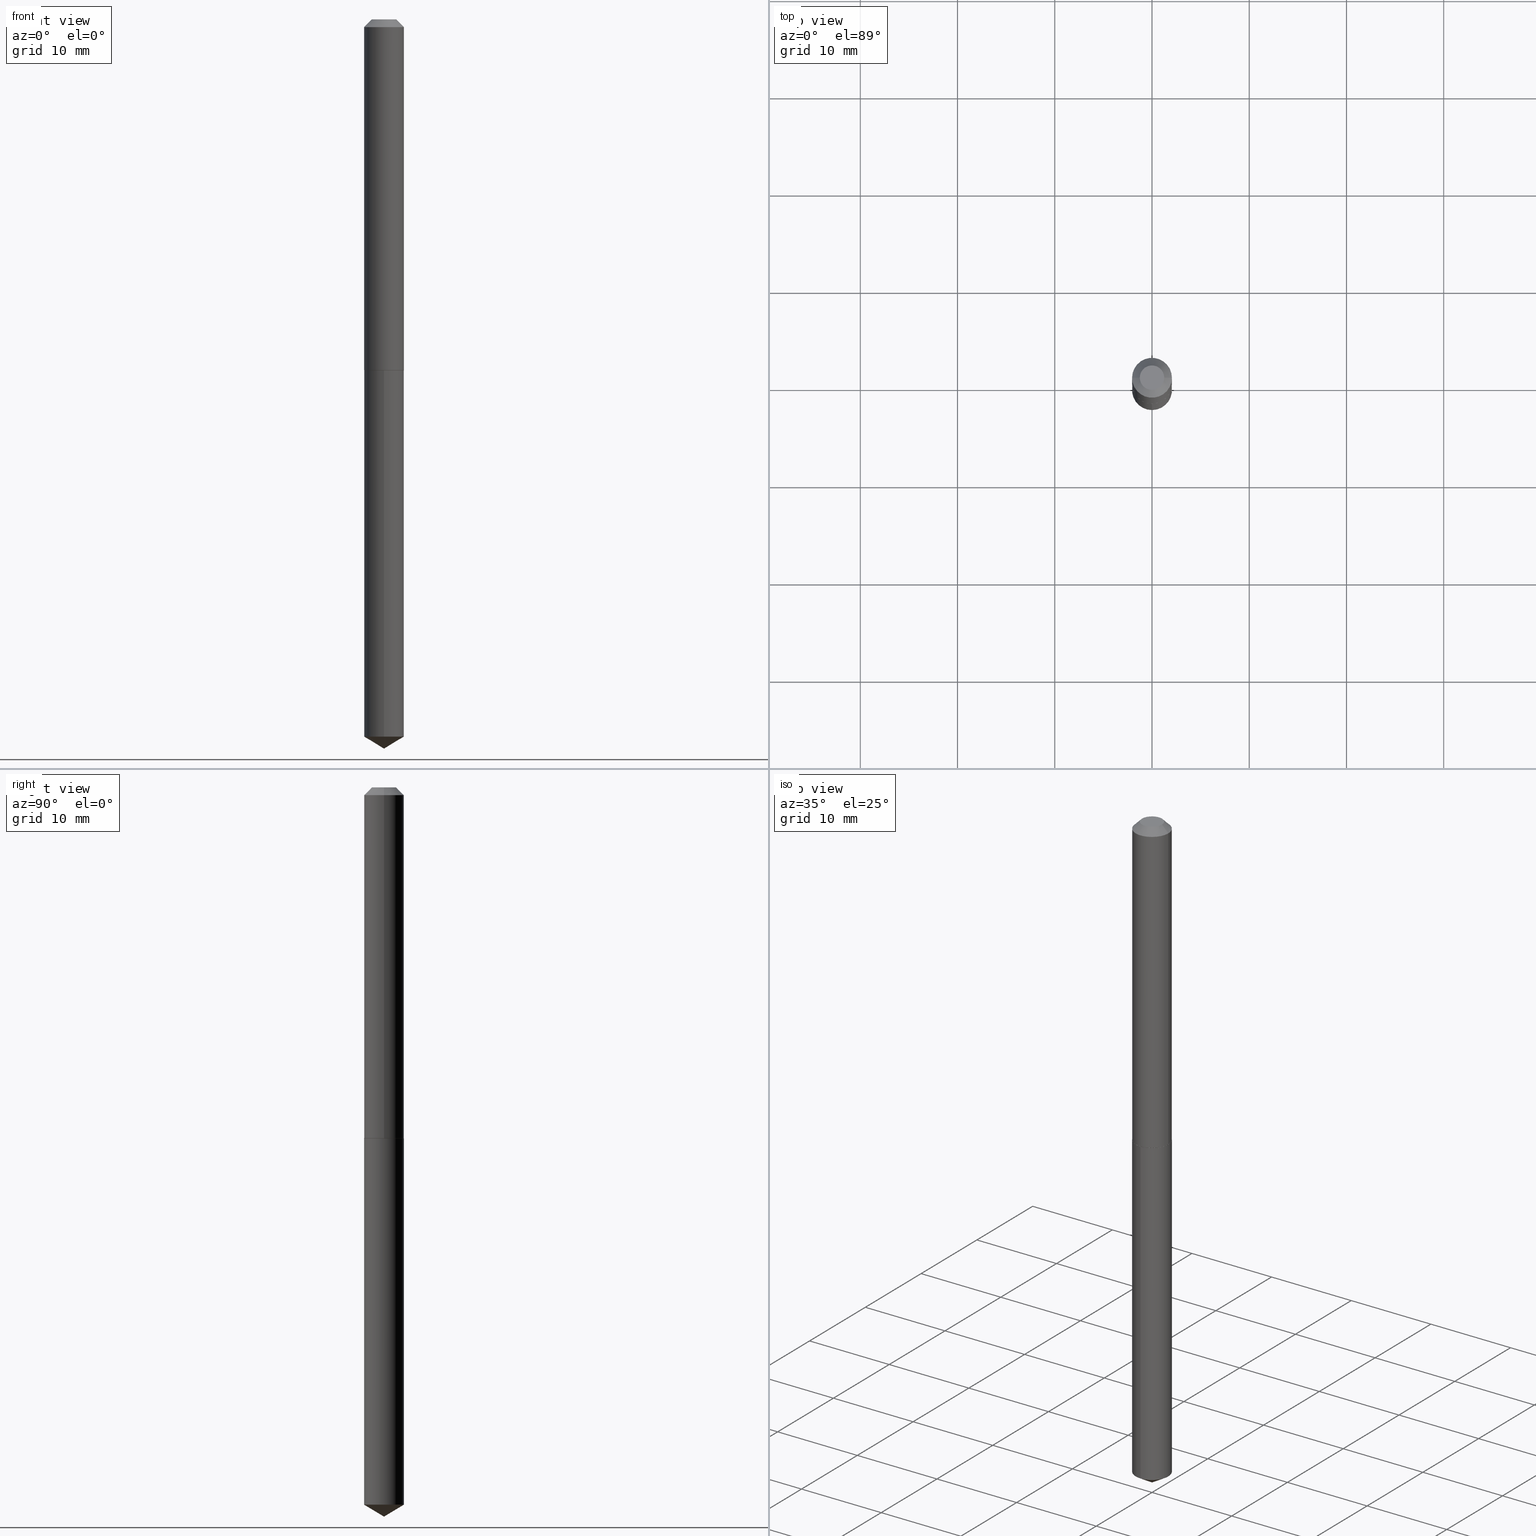
[diagram: canonical four-view strip — front | top / right | iso, engineering-drawing reading convention]
A machine part, canonical four-view strip (front | top / right | iso — engineering-drawing reading convention). The complete STEP part file that produces these views, byte-faithful:
ISO-10303-21;
HEADER;
FILE_DESCRIPTION (( 'STEP AP203' ),
    '1' );
FILE_NAME ('61076.STEP',
    '2024-04-23T03:18:44',
    ( '' ),
    ( '' ),
    'SwSTEP 2.0',
    'SolidWorks 2023',
    '' );
FILE_SCHEMA (( 'CONFIG_CONTROL_DESIGN' ));
ENDSEC;

DATA;
#1 = PERSON_AND_ORGANIZATION ( #143, #244 ) ;
#2 = EDGE_LOOP ( 'NONE', ( #319, #125 ) ) ;
#3 = ADVANCED_BREP_SHAPE_REPRESENTATION ( '61076', ( #176, #317, #228 ), #328 ) ;
#4 = CIRCLE ( 'NONE', #68, 0.04944999999999999396 ) ;
#5 = ADVANCED_FACE ( 'NONE', ( #6 ), #359, .T. ) ;
#6 = FACE_OUTER_BOUND ( 'NONE', #274, .T. ) ;
#7 = PRODUCT_DEFINITION ( 'UNKNOWN', '', #96, #199 ) ;
#8 = ORIENTED_EDGE ( 'NONE', *, *, #259, .T. ) ;
#9 = EDGE_CURVE ( 'NONE', #331, #148, #242, .T. ) ;
#10 = EDGE_LOOP ( 'NONE', ( #8, #339, #338, #133 ) ) ;
#11 = SHAPE_DEFINITION_REPRESENTATION ( #97, #3 ) ;
#12 = EDGE_LOOP ( 'NONE', ( #367, #380, #70, #129 ) ) ;
#13 = ORIENTED_EDGE ( 'NONE', *, *, #356, .F. ) ;
#14 = CARTESIAN_POINT ( 'NONE',  ( 0.08070000000000016049, -5.524221774317623619E-15, -1.420799999999999841 ) ) ;
#15 = CLOSED_SHELL ( 'NONE', ( #89, #106, #145, #297, #136, #171, #5, #255 ) ) ;
#16 = EDGE_CURVE ( 'NONE', #43, #303, #59, .T. ) ;
#17 = AXIS2_PLACEMENT_3D ( 'NONE', #307, #275, #375 ) ;
#18 = DIRECTION ( 'NONE',  ( 1.000000000000000000, -6.982962677686266711E-15, 4.876163536243812801E-29 ) ) ;
#19 = EDGE_LOOP ( 'NONE', ( #263, #67, #216, #300 ) ) ;
#20 = APPROVAL ( #323, 'UNSPECIFIED' ) ;
#21 = DIRECTION ( 'NONE',  ( 1.000000000000000000, -6.982962677686266711E-15, 4.876176775795935793E-29 ) ) ;
#22 = DIRECTION ( 'NONE',  ( -6.982962677686266711E-15, -1.000000000000000000, 3.385189583227092077E-15 ) ) ;
#23 = EDGE_CURVE ( 'NONE', #151, #303, #237, .T. ) ;
#24 = DIRECTION ( 'NONE',  ( 6.090539988449784746E-15, 0.8571673007021146651, 0.5150380749100500477 ) ) ;
#25 = CARTESIAN_POINT ( 'NONE',  ( 7.642090019328601786E-31, -1.091087918388490144E-16, -0.03125000000000020123 ) ) ;
#26 = CONICAL_SURFACE ( 'NONE', #234, 65.52281426576863055, 1.029744258676655866 ) ;
#27 = CIRCLE ( 'NONE', #158, 0.08070000000000016049 ) ;
#28 = DATE_AND_TIME ( #61, #46 ) ;
#29 = CARTESIAN_POINT ( 'NONE',  ( -0.08020000000000028495, -4.389937925644048206E-15, -1.421299999999999342 ) ) ;
#30 = COORDINATED_UNIVERSAL_TIME_OFFSET ( 5, 0, .BEHIND. ) ;
#31 = PERSON_AND_ORGANIZATION ( #143, #244 ) ;
#32 = EDGE_CURVE ( 'NONE', #122, #144, #42, .T. ) ;
#33 = AXIS2_PLACEMENT_3D ( 'NONE', #327, #390, #233 ) ;
#34 = CALENDAR_DATE ( 2024, 22, 4 ) ;
#35 = DIRECTION ( 'NONE',  ( -2.445468806185136877E-29, 3.491481338843145188E-15, 1.000000000000000000 ) ) ;
#36 = VERTEX_POINT ( 'NONE', #299 ) ;
#37 = APPROVAL_DATE_TIME ( #28, #20 ) ;
#38 = ADVANCED_FACE ( 'NONE', ( #240 ), #153, .T. ) ;
#39 = DIRECTION ( 'NONE',  ( -6.982962677686266711E-15, -1.000000000000000000, 3.385189583227092077E-15 ) ) ;
#40 = VECTOR ( 'NONE', #353, 39.37007874015748143 ) ;
#41 = ORIENTED_EDGE ( 'NONE', *, *, #250, .T. ) ;
#42 = LINE ( 'NONE', #206, #147 ) ;
#43 = VERTEX_POINT ( 'NONE', #218 ) ;
#44 = AXIS2_PLACEMENT_3D ( 'NONE', #25, #210, #373 ) ;
#45 = VERTEX_POINT ( 'NONE', #248 ) ;
#46 = LOCAL_TIME ( 23, 18, 44.00000000000000000, #30 ) ;
#47 = FACE_OUTER_BOUND ( 'NONE', #10, .T. ) ;
#48 = DIRECTION ( 'NONE',  ( 1.000000000000000000, -6.982962677686265922E-15, 4.876176775795935793E-29 ) ) ;
#49 = EDGE_CURVE ( 'NONE', #224, #43, #348, .T. ) ;
#50 = CARTESIAN_POINT ( 'NONE',  ( 3.474522079827841687E-29, -4.960696686228340179E-15, -1.420799999999999841 ) ) ;
#51 = AXIS2_PLACEMENT_3D ( 'NONE', #245, #193, #39 ) ;
#52 = EDGE_CURVE ( 'NONE', #122, #117, #247, .T. ) ;
#53 = CARTESIAN_POINT ( 'NONE',  ( 7.642090019328601786E-31, -1.091087918388490144E-16, -0.03125000000000020123 ) ) ;
#54 = CARTESIAN_POINT ( 'NONE',  ( 7.642090019328601786E-31, -1.091087918388490144E-16, -0.03125000000000020123 ) ) ;
#55 = DIRECTION ( 'NONE',  ( 1.000000000000000000, -6.982962677686269077E-15, 0.000000000000000000 ) ) ;
#56 = CC_DESIGN_PERSON_AND_ORGANIZATION_ASSIGNMENT ( #134, #194, ( #124 ) ) ;
#57 = DATE_AND_TIME ( #111, #374 ) ;
#58 = DIRECTION ( 'NONE',  ( -2.445468806185136597E-29, 3.491481338843145583E-15, 1.000000000000000000 ) ) ;
#59 = CIRCLE ( 'NONE', #334, 0.08070000000000016049 ) ;
#60 = APPROVAL_ROLE ( '' ) ;
#61 = CALENDAR_DATE ( 2024, 22, 4 ) ;
#62 = EDGE_CURVE ( 'NONE', #144, #45, #126, .T. ) ;
#63 = AXIS2_PLACEMENT_3D ( 'NONE', #54, #222, #347 ) ;
#64 = EDGE_CURVE ( 'NONE', #224, #151, #294, .T. ) ;
#65 = PLANE ( 'NONE',  #211 ) ;
#66 = DIRECTION ( 'NONE',  ( -6.982962677686266711E-15, -1.000000000000000000, 6.770379166454184154E-15 ) ) ;
#67 = ORIENTED_EDGE ( 'NONE', *, *, #23, .T. ) ;
#68 = AXIS2_PLACEMENT_3D ( 'NONE', #157, #282, #18 ) ;
#69 = CIRCLE ( 'NONE', #17, 0.04944999999999999396 ) ;
#70 = ORIENTED_EDGE ( 'NONE', *, *, #340, .T. ) ;
#71 = CC_DESIGN_DATE_AND_TIME_ASSIGNMENT ( #91, #200, ( #7 ) ) ;
#72 = CONICAL_SURFACE ( 'NONE', #201, 0.08070000000000016049, 0.7853981633977044075 ) ;
#73 = CARTESIAN_POINT ( 'NONE',  ( 7.642090019328601786E-31, -1.091087918388490144E-16, -0.03125000000000020123 ) ) ;
#74 = CC_DESIGN_APPROVAL ( #230, ( #202 ) ) ;
#75 = ADVANCED_FACE ( 'NONE', ( #286 ), #215, .F. ) ;
#76 = CYLINDRICAL_SURFACE ( 'NONE', #227, 0.08070000000000007723 ) ;
#77 = APPLICATION_CONTEXT ( 'configuration controlled 3d designs of mechanical parts and assemblies' ) ;
#78 = FACE_OUTER_BOUND ( 'NONE', #102, .T. ) ;
#79 = ORIENTED_EDGE ( 'NONE', *, *, #266, .T. ) ;
#80 = CARTESIAN_POINT ( 'NONE',  ( 3.475744814230932807E-29, -4.962442426897760893E-15, -1.421299999999999342 ) ) ;
#81 = AXIS2_PLACEMENT_3D ( 'NONE', #53, #378, #159 ) ;
#82 = CARTESIAN_POINT ( 'NONE',  ( 3.474522079827841687E-29, -4.960696686228340179E-15, -1.420799999999999841 ) ) ;
#83 = DIRECTION ( 'NONE',  ( -2.445468806185136597E-29, 3.491481338843145583E-15, 1.000000000000000000 ) ) ;
#84 = CARTESIAN_POINT ( 'NONE',  ( 5.734079877584715087E-16, 0.08069999999998982154, -2.904310548044476192 ) ) ;
#85 = ORIENTED_EDGE ( 'NONE', *, *, #32, .F. ) ;
#86 = CALENDAR_DATE ( 2024, 22, 4 ) ;
#87 = AXIS2_PLACEMENT_3D ( 'NONE', #284, #105, #21 ) ;
#88 = PERSON_AND_ORGANIZATION ( #143, #244 ) ;
#89 = ADVANCED_FACE ( 'NONE', ( #345 ), #107, .T. ) ;
#90 = PERSON_AND_ORGANIZATION ( #143, #244 ) ;
#91 = DATE_AND_TIME ( #34, #220 ) ;
#92 = DIRECTION ( 'NONE',  ( 2.438088387897960049E-29, -3.491481338843145188E-15, -1.000000000000000000 ) ) ;
#93 = APPROVAL_PERSON_ORGANIZATION ( #316, #230, #260 ) ;
#94 = CARTESIAN_POINT ( 'NONE',  ( -5.914800203170896741E-48, 8.444767105646489892E-34, 2.418677428316012991E-19 ) ) ;
#95 = DIRECTION ( 'NONE',  ( -0.7071067811867286501, 7.493145998871008915E-15, 0.7071067811863664954 ) ) ;
#96 = PRODUCT_DEFINITION_FORMATION_WITH_SPECIFIED_SOURCE ( 'ANY', '', #124, .NOT_KNOWN. ) ;
#97 = PRODUCT_DEFINITION_SHAPE ( 'NONE', 'NONE',  #7 ) ;
#98 = ORIENTED_EDGE ( 'NONE', *, *, #385, .T. ) ;
#99 = VECTOR ( 'NONE', #384, 39.37007874015748143 ) ;
#100 = DIRECTION ( 'NONE',  ( 6.982962677686265922E-15, 1.000000000000000000, -3.491434086308526252E-15 ) ) ;
#101 = DIRECTION ( 'NONE',  ( 1.000000000000000000, -6.982962677686265133E-15, 0.000000000000000000 ) ) ;
#102 = EDGE_LOOP ( 'NONE', ( #177, #123, #249, #272 ) ) ;
#103 = CYLINDRICAL_SURFACE ( 'NONE', #236, 0.08069999999999999396 ) ;
#104 = DIRECTION ( 'NONE',  ( 1.000000000000000000, -6.982962677686269077E-15, 0.000000000000000000 ) ) ;
#105 = DIRECTION ( 'NONE',  ( -2.445468806185136597E-29, 3.491481338843145583E-15, 1.000000000000000000 ) ) ;
#106 = ADVANCED_FACE ( 'NONE', ( #310 ), #130, .T. ) ;
#107 = CONICAL_SURFACE ( 'NONE', #81, 0.08069999999999999396, 0.7853981633974450594 ) ;
#108 = CIRCLE ( 'NONE', #167, 0.08069999999999999396 ) ;
#109 = DIRECTION ( 'NONE',  ( -2.445468806185136877E-29, 3.491481338843145188E-15, 1.000000000000000000 ) ) ;
#110 = CARTESIAN_POINT ( 'NONE',  ( 3.475744814230933928E-29, -4.962442426897761682E-15, -1.421299999999999564 ) ) ;
#111 = CALENDAR_DATE ( 2024, 22, 4 ) ;
#112 = EDGE_CURVE ( 'NONE', #150, #36, #251, .T. ) ;
#113 =( LENGTH_UNIT ( ) NAMED_UNIT ( * ) SI_UNIT ( $, .METRE. ) );
#114 = APPROVAL_STATUS ( 'not_yet_approved' ) ;
#115 = DIRECTION ( 'NONE',  ( 0.000000000000000000, 0.000000000000000000, 1.000000000000000000 ) ) ;
#116 = AXIS2_PLACEMENT_3D ( 'NONE', #80, #376, #101 ) ;
#117 = VERTEX_POINT ( 'NONE', #84 ) ;
#118 = EDGE_CURVE ( 'NONE', #151, #224, #388, .T. ) ;
#119 = ORIENTED_EDGE ( 'NONE', *, *, #184, .F. ) ;
#120 = VECTOR ( 'NONE', #35, 39.37007874015748143 ) ;
#121 = EDGE_LOOP ( 'NONE', ( #85, #163, #271 ) ) ;
#122 = VERTEX_POINT ( 'NONE', #223 ) ;
#123 = ORIENTED_EDGE ( 'NONE', *, *, #118, .T. ) ;
#124 = PRODUCT ( '61076', '61076', '', ( #168 ) ) ;
#125 = ORIENTED_EDGE ( 'NONE', *, *, #118, .F. ) ;
#126 = LINE ( 'NONE', #191, #40 ) ;
#127 = DIRECTION ( 'NONE',  ( -6.982962677686265922E-15, -1.000000000000000000, 3.468864327941583565E-15 ) ) ;
#128 = CARTESIAN_POINT ( 'NONE',  ( 7.102449782531555284E-29, -1.014027600469533393E-14, -2.904310548044475748 ) ) ;
#129 = ORIENTED_EDGE ( 'NONE', *, *, #266, .F. ) ;
#130 = CYLINDRICAL_SURFACE ( 'NONE', #87, 0.08070000000000007723 ) ;
#131 = CARTESIAN_POINT ( 'NONE',  ( -5.635250880892103719E-16, -0.08070000000001011087, -2.904310548044475304 ) ) ;
#132 = CIRCLE ( 'NONE', #207, 0.08069999999999999396 ) ;
#133 = ORIENTED_EDGE ( 'NONE', *, *, #62, .F. ) ;
#134 = PERSON_AND_ORGANIZATION ( #143, #244 ) ;
#135 = FACE_OUTER_BOUND ( 'NONE', #12, .T. ) ;
#136 = ADVANCED_FACE ( 'NONE', ( #78 ), #72, .T. ) ;
#137 = PERSON_AND_ORGANIZATION_ROLE ( 'classification_officer' ) ;
#138 = LOCAL_TIME ( 23, 18, 44.00000000000000000, #288 ) ;
#139 = COORDINATED_UNIVERSAL_TIME_OFFSET ( 5, 0, .BEHIND. ) ;
#140 = DIRECTION ( 'NONE',  ( -1.000000000000000000, 6.982962677686265922E-15, -4.876176775795935793E-29 ) ) ;
#141 = APPROVAL_STATUS ( 'not_yet_approved' ) ;
#142 = CC_DESIGN_PERSON_AND_ORGANIZATION_ASSIGNMENT ( #31, #137, ( #202 ) ) ;
#143 = PERSON ( 'UNSPECIFIED', 'UNSPECIFIED', 'UNSPECIFIED', ('UNSPECIFIED'), ('UNSPECIFIED'), ('UNSPECIFIED') ) ;
#144 = VERTEX_POINT ( 'NONE', #131 ) ;
#145 = ADVANCED_FACE ( 'NONE', ( #318 ), #166, .T. ) ;
#146 = CARTESIAN_POINT ( 'NONE',  ( 3.474522079827841687E-29, -4.960696686228340179E-15, -1.420799999999999841 ) ) ;
#147 = VECTOR ( 'NONE', #333, 39.37007874015748854 ) ;
#148 = VERTEX_POINT ( 'NONE', #165 ) ;
#149 = CC_DESIGN_PERSON_AND_ORGANIZATION_ASSIGNMENT ( #88, #322, ( #7 ) ) ;
#150 = VERTEX_POINT ( 'NONE', #289 ) ;
#151 = VERTEX_POINT ( 'NONE', #29 ) ;
#152 = CARTESIAN_POINT ( 'NONE',  ( 3.475744814230933928E-29, -4.962442426897761682E-15, -1.421299999999999564 ) ) ;
#153 = CYLINDRICAL_SURFACE ( 'NONE', #287, 0.08069999999999999396 ) ;
#154 = ORIENTED_EDGE ( 'NONE', *, *, #204, .F. ) ;
#155 = AXIS2_PLACEMENT_3D ( 'NONE', #73, #180, #371 ) ;
#156 = FACE_OUTER_BOUND ( 'NONE', #276, .T. ) ;
#157 = CARTESIAN_POINT ( 'NONE',  ( -1.182960040634179348E-47, 1.688953421129297978E-33, 4.837354856632025983E-19 ) ) ;
#158 = AXIS2_PLACEMENT_3D ( 'NONE', #82, #181, #161 ) ;
#159 = DIRECTION ( 'NONE',  ( -1.000000000000000000, 6.982962677686266711E-15, 0.000000000000000000 ) ) ;
#160 = APPLICATION_CONTEXT ( 'configuration controlled 3d designs of mechanical parts and assemblies' ) ;
#161 = DIRECTION ( 'NONE',  ( 1.000000000000000000, -6.982962677686269077E-15, 0.000000000000000000 ) ) ;
#162 = DIRECTION ( 'NONE',  ( 2.445501802453703487E-29, -3.491434086308526252E-15, -1.000000000000000000 ) ) ;
#163 = ORIENTED_EDGE ( 'NONE', *, *, #52, .T. ) ;
#164 = APPROVAL_ROLE ( '' ) ;
#165 = CARTESIAN_POINT ( 'NONE',  ( -0.08069999999999999396, -1.961494751275192255E-15, -0.03125000000000020123 ) ) ;
#166 = CONICAL_SURFACE ( 'NONE', #175, 0.08070000000000016049, 0.7853981633977044075 ) ;
#167 = AXIS2_PLACEMENT_3D ( 'NONE', #152, #277, #312 ) ;
#168 = MECHANICAL_CONTEXT ( 'NONE', #160, 'mechanical' ) ;
#169 = PERSON_AND_ORGANIZATION ( #143, #244 ) ;
#170 = CARTESIAN_POINT ( 'NONE',  ( -0.08070000000000007723, 5.734079877584013987E-16, -3.969580617835712947E-30 ) ) ;
#171 = ADVANCED_FACE ( 'NONE', ( #135 ), #76, .T. ) ;
#172 = DIRECTION ( 'NONE',  ( 1.000000000000000000, 0.000000000000000000, 0.000000000000000000 ) ) ;
#173 = EDGE_CURVE ( 'NONE', #150, #331, #4, .T. ) ;
#174 = DIRECTION ( 'NONE',  ( -0.7071067811865452413, 2.468850131082233000E-15, -0.7071067811865497932 ) ) ;
#175 = AXIS2_PLACEMENT_3D ( 'NONE', #344, #58, #104 ) ;
#176 = MANIFOLD_SOLID_BREP ( 'Body-Move/Copy2[1]', #326 ) ;
#177 = ORIENTED_EDGE ( 'NONE', *, *, #23, .F. ) ;
#178 = ORIENTED_EDGE ( 'NONE', *, *, #173, .T. ) ;
#179 = AXIS2_PLACEMENT_3D ( 'NONE', #253, #352, #48 ) ;
#180 = DIRECTION ( 'NONE',  ( 2.445468806185136597E-29, -3.491481338843145583E-15, -1.000000000000000000 ) ) ;
#181 = DIRECTION ( 'NONE',  ( -2.445468806185136597E-29, 3.491481338843145583E-15, 1.000000000000000000 ) ) ;
#182 = DIRECTION ( 'NONE',  ( -2.445468806185136597E-29, 3.491481338843145583E-15, 1.000000000000000000 ) ) ;
#183 = DIRECTION ( 'NONE',  ( 1.000000000000000000, -6.982962677686266711E-15, 4.876176775795935793E-29 ) ) ;
#184 = EDGE_CURVE ( 'NONE', #117, #144, #132, .T. ) ;
#185 = CONICAL_SURFACE ( 'NONE', #33, 65.52281426576863055, 1.029744258676655866 ) ;
#186 = CARTESIAN_POINT ( 'NONE',  ( -0.04944999999999999396, 3.998619003310092961E-16, 4.837354856605972966E-19 ) ) ;
#187 = VECTOR ( 'NONE', #109, 39.37007874015748143 ) ;
#188 = DIRECTION ( 'NONE',  ( 1.000000000000000000, -6.982962677686265133E-15, 0.000000000000000000 ) ) ;
#189 = ORIENTED_EDGE ( 'NONE', *, *, #112, .T. ) ;
#190 = PERSON_AND_ORGANIZATION_ROLE ( 'design_supplier' ) ;
#191 = CARTESIAN_POINT ( 'NONE',  ( -5.635250880892469553E-16, -0.08070000000000496221, -1.421299999999999342 ) ) ;
#192 = ORIENTED_EDGE ( 'NONE', *, *, #9, .T. ) ;
#193 = DIRECTION ( 'NONE',  ( -2.445501802453704047E-29, 3.491434086308526252E-15, 1.000000000000000000 ) ) ;
#194 = PERSON_AND_ORGANIZATION_ROLE ( 'design_owner' ) ;
#195 = VECTOR ( 'NONE', #174, 39.37007874015748143 ) ;
#196 = SECURITY_CLASSIFICATION_LEVEL ( 'unclassified' ) ;
#197 = LINE ( 'NONE', #170, #120 ) ;
#198 = EDGE_CURVE ( 'NONE', #45, #208, #279, .T. ) ;
#199 = DESIGN_CONTEXT ( 'detailed design', #77, 'design' ) ;
#200 = DATE_TIME_ROLE ( 'creation_date' ) ;
#201 = AXIS2_PLACEMENT_3D ( 'NONE', #50, #213, #55 ) ;
#202 = SECURITY_CLASSIFICATION ( '', '', #196 ) ;
#203 = DIRECTION ( 'NONE',  ( -2.445501802453704047E-29, 3.491434086308526252E-15, 1.000000000000000000 ) ) ;
#204 = EDGE_CURVE ( 'NONE', #36, #148, #261, .T. ) ;
#205 = ORIENTED_EDGE ( 'NONE', *, *, #204, .T. ) ;
#206 = CARTESIAN_POINT ( 'NONE',  ( 7.220983927092265808E-29, -1.030964089010672249E-14, -2.952799999999999869 ) ) ;
#207 = AXIS2_PLACEMENT_3D ( 'NONE', #128, #329, #66 ) ;
#208 = VERTEX_POINT ( 'NONE', #306 ) ;
#209 = CC_DESIGN_PERSON_AND_ORGANIZATION_ASSIGNMENT ( #90, #190, ( #96 ) ) ;
#210 = DIRECTION ( 'NONE',  ( -2.445468806185136597E-29, 3.491481338843145583E-15, 1.000000000000000000 ) ) ;
#211 = AXIS2_PLACEMENT_3D ( 'NONE', #94, #92, #140 ) ;
#212 = CARTESIAN_POINT ( 'NONE',  ( -0.08070000000000016049, -4.387288698469938583E-15, -1.420799999999999841 ) ) ;
#213 = DIRECTION ( 'NONE',  ( -2.445468806185136597E-29, 3.491481338843145583E-15, 1.000000000000000000 ) ) ;
#214 = CARTESIAN_POINT ( 'NONE',  ( -8.905856769711059693E-28, 1.271484611639572157E-13, 36.41727874015747801 ) ) ;
#215 = PLANE ( 'NONE',  #321 ) ;
#216 = ORIENTED_EDGE ( 'NONE', *, *, #16, .F. ) ;
#217 = CARTESIAN_POINT ( 'NONE',  ( 3.475744814230933928E-29, -4.962442426897761682E-15, -1.421299999999999564 ) ) ;
#218 = CARTESIAN_POINT ( 'NONE',  ( 0.08070000000000016049, -5.524221774317623619E-15, -1.420799999999999841 ) ) ;
#219 = FACE_OUTER_BOUND ( 'NONE', #2, .T. ) ;
#220 = LOCAL_TIME ( 23, 18, 44.00000000000000000, #362 ) ;
#221 = CARTESIAN_POINT ( 'NONE',  ( 3.475744814230932807E-29, -4.962442426897760893E-15, -1.421299999999999342 ) ) ;
#222 = DIRECTION ( 'NONE',  ( -2.445468806185136597E-29, 3.491481338843145583E-15, 1.000000000000000000 ) ) ;
#223 = CARTESIAN_POINT ( 'NONE',  ( 7.221077722285295403E-29, -1.030950657005181356E-14, -2.952799999999999869 ) ) ;
#224 = VERTEX_POINT ( 'NONE', #354 ) ;
#225 = APPROVAL ( #141, 'UNSPECIFIED' ) ;
#226 = LENGTH_MEASURE_WITH_UNIT ( LENGTH_MEASURE( 0.02539999999999999897 ), #113 );
#227 = AXIS2_PLACEMENT_3D ( 'NONE', #257, #182, #183 ) ;
#228 = AXIS2_PLACEMENT_3D ( 'NONE', #296, #115, #172 ) ;
#229 = CARTESIAN_POINT ( 'NONE',  ( 5.734079877584354184E-16, 0.08069999999999502571, -1.421300000000000008 ) ) ;
#230 = APPROVAL ( #114, 'UNSPECIFIED' ) ;
#231 = CARTESIAN_POINT ( 'NONE',  ( 7.102449782531555284E-29, -1.014027600469533393E-14, -2.904310548044475748 ) ) ;
#232 = DATE_TIME_ROLE ( 'classification_date' ) ;
#233 = DIRECTION ( 'NONE',  ( -6.982962677686265922E-15, -1.000000000000000000, 3.468864327941583565E-15 ) ) ;
#234 = AXIS2_PLACEMENT_3D ( 'NONE', #214, #281, #127 ) ;
#235 = ADVANCED_FACE ( 'NONE', ( #314 ), #185, .T. ) ;
#236 = AXIS2_PLACEMENT_3D ( 'NONE', #217, #285, #22 ) ;
#237 = LINE ( 'NONE', #365, #268 ) ;
#238 = CARTESIAN_POINT ( 'NONE',  ( -0.08069999999999999396, 4.544162962504325645E-16, -0.03125000000000020123 ) ) ;
#239 = ORIENTED_EDGE ( 'NONE', *, *, #32, .T. ) ;
#240 = FACE_OUTER_BOUND ( 'NONE', #366, .T. ) ;
#241 = ORIENTED_EDGE ( 'NONE', *, *, #184, .T. ) ;
#242 = LINE ( 'NONE', #238, #195 ) ;
#243 = EDGE_CURVE ( 'NONE', #117, #208, #292, .T. ) ;
#244 = ORGANIZATION ( 'UNSPECIFIED', 'UNSPECIFIED', '' ) ;
#245 = CARTESIAN_POINT ( 'NONE',  ( 3.475744814230933928E-29, -4.962442426897761682E-15, -1.421299999999999564 ) ) ;
#246 = LINE ( 'NONE', #383, #187 ) ;
#247 = LINE ( 'NONE', #278, #372 ) ;
#248 = CARTESIAN_POINT ( 'NONE',  ( -5.635250880892469553E-16, -0.08070000000000496221, -1.421299999999999342 ) ) ;
#249 = ORIENTED_EDGE ( 'NONE', *, *, #49, .T. ) ;
#250 = EDGE_CURVE ( 'NONE', #303, #148, #197, .T. ) ;
#251 = LINE ( 'NONE', #313, #381 ) ;
#252 = VECTOR ( 'NONE', #361, 39.37007874015748143 ) ;
#253 = CARTESIAN_POINT ( 'NONE',  ( 3.475744814230932807E-29, -4.962442426897760893E-15, -1.421299999999999342 ) ) ;
#254 = DIRECTION ( 'NONE',  ( -2.445501802453704047E-29, 3.491434086308526252E-15, 1.000000000000000000 ) ) ;
#255 = ADVANCED_FACE ( 'NONE', ( #265 ), #65, .F. ) ;
#256 =( CONVERSION_BASED_UNIT ( 'INCH', #226 ) LENGTH_UNIT ( ) NAMED_UNIT ( #364 ) );
#257 = CARTESIAN_POINT ( 'NONE',  ( 0.000000000000000000, 0.000000000000000000, 0.000000000000000000 ) ) ;
#258 = PERSON_AND_ORGANIZATION ( #143, #244 ) ;
#259 = EDGE_CURVE ( 'NONE', #144, #117, #311, .T. ) ;
#260 = APPROVAL_ROLE ( '' ) ;
#261 = CIRCLE ( 'NONE', #44, 0.08069999999999999396 ) ;
#262 = DATE_AND_TIME ( #357, #280 ) ;
#263 = ORIENTED_EDGE ( 'NONE', *, *, #64, .T. ) ;
#264 = APPLICATION_PROTOCOL_DEFINITION ( 'international standard', 'config_control_design', 1994, #160 ) ;
#265 = FACE_OUTER_BOUND ( 'NONE', #358, .T. ) ;
#266 = EDGE_CURVE ( 'NONE', #148, #36, #304, .T. ) ;
#267 = CC_DESIGN_DATE_AND_TIME_ASSIGNMENT ( #262, #232, ( #202 ) ) ;
#268 = VECTOR ( 'NONE', #95, 39.37007874015748143 ) ;
#269 = APPROVAL_PERSON_ORGANIZATION ( #1, #20, #164 ) ;
#270 = EDGE_LOOP ( 'NONE', ( #386, #189, #205, #273 ) ) ;
#271 = ORIENTED_EDGE ( 'NONE', *, *, #259, .F. ) ;
#272 = ORIENTED_EDGE ( 'NONE', *, *, #324, .F. ) ;
#273 = ORIENTED_EDGE ( 'NONE', *, *, #9, .F. ) ;
#274 = EDGE_LOOP ( 'NONE', ( #337, #13, #192, #79 ) ) ;
#275 = DIRECTION ( 'NONE',  ( -2.445468806185136597E-29, 3.491481338843145583E-15, 1.000000000000000000 ) ) ;
#276 = EDGE_LOOP ( 'NONE', ( #346, #239, #119 ) ) ;
#277 = DIRECTION ( 'NONE',  ( -2.445501802453704047E-29, 3.491434086308526252E-15, 1.000000000000000000 ) ) ;
#278 = CARTESIAN_POINT ( 'NONE',  ( 7.221078544758421826E-29, -1.030950657005181356E-14, -2.952799999999999869 ) ) ;
#279 = CIRCLE ( 'NONE', #51, 0.08069999999999999396 ) ;
#280 = LOCAL_TIME ( 23, 18, 44.00000000000000000, #139 ) ;
#281 = DIRECTION ( 'NONE',  ( -2.445501802453704047E-29, 3.491434086308526252E-15, 1.000000000000000000 ) ) ;
#282 = DIRECTION ( 'NONE',  ( -2.445468806185136597E-29, 3.491481338843145583E-15, 1.000000000000000000 ) ) ;
#283 = EDGE_LOOP ( 'NONE', ( #295, #41, #154, #349 ) ) ;
#284 = CARTESIAN_POINT ( 'NONE',  ( 0.000000000000000000, 0.000000000000000000, 0.000000000000000000 ) ) ;
#285 = DIRECTION ( 'NONE',  ( -2.445501802453704047E-29, 3.491434086308526252E-15, 1.000000000000000000 ) ) ;
#286 = FACE_OUTER_BOUND ( 'NONE', #341, .T. ) ;
#287 = AXIS2_PLACEMENT_3D ( 'NONE', #355, #254, #379 ) ;
#288 = COORDINATED_UNIVERSAL_TIME_OFFSET ( 5, 0, .BEHIND. ) ;
#289 = CARTESIAN_POINT ( 'NONE',  ( 0.04944999999999999396, -5.010013031244069915E-16, 4.837354856661612119E-19 ) ) ;
#290 =( NAMED_UNIT ( * ) SI_UNIT ( $, .STERADIAN. ) SOLID_ANGLE_UNIT ( ) );
#291 = ADVANCED_FACE ( 'NONE', ( #156 ), #26, .T. ) ;
#292 = LINE ( 'NONE', #229, #252 ) ;
#293 = APPROVAL_DATE_TIME ( #57, #225 ) ;
#294 = CIRCLE ( 'NONE', #116, 0.08020000000000028495 ) ;
#295 = ORIENTED_EDGE ( 'NONE', *, *, #16, .T. ) ;
#296 = CARTESIAN_POINT ( 'NONE',  ( 0.000000000000000000, 0.000000000000000000, 0.000000000000000000 ) ) ;
#297 = ADVANCED_FACE ( 'NONE', ( #219 ), #305, .F. ) ;
#298 = DIRECTION ( 'NONE',  ( 1.000000000000000000, -6.982962677686269077E-15, 0.000000000000000000 ) ) ;
#299 = CARTESIAN_POINT ( 'NONE',  ( 0.08069999999999999396, -6.726338799281306672E-16, -0.03125000000000020123 ) ) ;
#300 = ORIENTED_EDGE ( 'NONE', *, *, #49, .F. ) ;
#301 = DIRECTION ( 'NONE',  ( -2.445468806185136597E-29, 3.491481338843145583E-15, 1.000000000000000000 ) ) ;
#302 = APPROVAL_DATE_TIME ( #336, #230 ) ;
#303 = VERTEX_POINT ( 'NONE', #212 ) ;
#304 = CIRCLE ( 'NONE', #63, 0.08069999999999999396 ) ;
#305 = PLANE ( 'NONE',  #179 ) ;
#306 = CARTESIAN_POINT ( 'NONE',  ( 5.734079877584720018E-16, 0.08069999999999502571, -1.421300000000000008 ) ) ;
#307 = CARTESIAN_POINT ( 'NONE',  ( -1.182960040634179348E-47, 1.688953421129297978E-33, 4.837354856632025983E-19 ) ) ;
#308 = DIRECTION ( 'NONE',  ( 0.7071067811865452413, -7.319954787623248157E-15, -0.7071067811865497932 ) ) ;
#309 = ORIENTED_EDGE ( 'NONE', *, *, #62, .T. ) ;
#310 = FACE_OUTER_BOUND ( 'NONE', #283, .T. ) ;
#311 = CIRCLE ( 'NONE', #350, 0.08069999999999999396 ) ;
#312 = DIRECTION ( 'NONE',  ( -6.982962677686266711E-15, -1.000000000000000000, 3.385189583227092077E-15 ) ) ;
#313 = CARTESIAN_POINT ( 'NONE',  ( 0.08069999999999999396, -6.627509802590116239E-16, -0.03125000000000020123 ) ) ;
#314 = FACE_OUTER_BOUND ( 'NONE', #121, .T. ) ;
#315 = ORIENTED_EDGE ( 'NONE', *, *, #243, .F. ) ;
#316 = PERSON_AND_ORGANIZATION ( #143, #244 ) ;
#317 = MANIFOLD_SOLID_BREP ( 'Body-Move/Copy2[2]', #15 ) ;
#318 = FACE_OUTER_BOUND ( 'NONE', #19, .T. ) ;
#319 = ORIENTED_EDGE ( 'NONE', *, *, #64, .F. ) ;
#320 = UNCERTAINTY_MEASURE_WITH_UNIT (LENGTH_MEASURE( 1.000000000000000082E-05 ), #256, 'distance_accuracy_value', 'NONE');
#321 = AXIS2_PLACEMENT_3D ( 'NONE', #110, #162, #100 ) ;
#322 = PERSON_AND_ORGANIZATION_ROLE ( 'creator' ) ;
#323 = APPROVAL_STATUS ( 'not_yet_approved' ) ;
#324 = EDGE_CURVE ( 'NONE', #303, #43, #27, .T. ) ;
#325 = PERSON_AND_ORGANIZATION_ROLE ( 'creator' ) ;
#326 = CLOSED_SHELL ( 'NONE', ( #332, #235, #291, #38, #75 ) ) ;
#327 = CARTESIAN_POINT ( 'NONE',  ( -8.905856769711059693E-28, 1.271484611639572157E-13, 36.41727874015747801 ) ) ;
#328 =( GEOMETRIC_REPRESENTATION_CONTEXT ( 3 ) GLOBAL_UNCERTAINTY_ASSIGNED_CONTEXT ( ( #320 ) ) GLOBAL_UNIT_ASSIGNED_CONTEXT ( ( #256, #387, #290 ) ) REPRESENTATION_CONTEXT ( 'NONE', 'WORKASPACE' ) );
#329 = DIRECTION ( 'NONE',  ( -2.445501802453704047E-29, 3.491434086308526252E-15, 1.000000000000000000 ) ) ;
#330 = DIRECTION ( 'NONE',  ( -6.982962677686266711E-15, -1.000000000000000000, 6.770379166454184154E-15 ) ) ;
#331 = VERTEX_POINT ( 'NONE', #186 ) ;
#332 = ADVANCED_FACE ( 'NONE', ( #47 ), #103, .T. ) ;
#333 = DIRECTION ( 'NONE',  ( -5.985567269335946802E-15, -0.8571673007021111124, 0.5150380749100559319 ) ) ;
#334 = AXIS2_PLACEMENT_3D ( 'NONE', #146, #301, #298 ) ;
#335 = CC_DESIGN_APPROVAL ( #225, ( #7 ) ) ;
#336 = DATE_AND_TIME ( #86, #138 ) ;
#337 = ORIENTED_EDGE ( 'NONE', *, *, #112, .F. ) ;
#338 = ORIENTED_EDGE ( 'NONE', *, *, #198, .F. ) ;
#339 = ORIENTED_EDGE ( 'NONE', *, *, #243, .T. ) ;
#340 = EDGE_CURVE ( 'NONE', #43, #36, #246, .T. ) ;
#341 = EDGE_LOOP ( 'NONE', ( #369, #98 ) ) ;
#342 = AXIS2_PLACEMENT_3D ( 'NONE', #221, #83, #188 ) ;
#343 = CC_DESIGN_PERSON_AND_ORGANIZATION_ASSIGNMENT ( #169, #325, ( #96 ) ) ;
#344 = CARTESIAN_POINT ( 'NONE',  ( 3.474522079827841687E-29, -4.960696686228340179E-15, -1.420799999999999841 ) ) ;
#345 = FACE_OUTER_BOUND ( 'NONE', #270, .T. ) ;
#346 = ORIENTED_EDGE ( 'NONE', *, *, #52, .F. ) ;
#347 = DIRECTION ( 'NONE',  ( 1.000000000000000000, -6.982962677686266711E-15, 0.000000000000000000 ) ) ;
#348 = LINE ( 'NONE', #14, #99 ) ;
#349 = ORIENTED_EDGE ( 'NONE', *, *, #340, .F. ) ;
#350 = AXIS2_PLACEMENT_3D ( 'NONE', #231, #203, #330 ) ;
#351 = CC_DESIGN_SECURITY_CLASSIFICATION ( #202, ( #96 ) ) ;
#352 = DIRECTION ( 'NONE',  ( -2.438088387897960049E-29, 3.491481338843145188E-15, 1.000000000000000000 ) ) ;
#353 = DIRECTION ( 'NONE',  ( -2.445501802453704047E-29, 3.491434086308526252E-15, 1.000000000000000000 ) ) ;
#354 = CARTESIAN_POINT ( 'NONE',  ( 0.08020000000000028495, -5.522476033648201326E-15, -1.421299999999999342 ) ) ;
#355 = CARTESIAN_POINT ( 'NONE',  ( 3.475744814230933928E-29, -4.962442426897761682E-15, -1.421299999999999564 ) ) ;
#356 = EDGE_CURVE ( 'NONE', #331, #150, #69, .T. ) ;
#357 = CALENDAR_DATE ( 2024, 22, 4 ) ;
#358 = EDGE_LOOP ( 'NONE', ( #368, #178 ) ) ;
#359 = CONICAL_SURFACE ( 'NONE', #155, 0.08069999999999999396, 0.7853981633974450594 ) ;
#360 = APPLICATION_PROTOCOL_DEFINITION ( 'international standard', 'config_control_design', 1994, #77 ) ;
#361 = DIRECTION ( 'NONE',  ( -2.445501802453704047E-29, 3.491434086308526252E-15, 1.000000000000000000 ) ) ;
#362 = COORDINATED_UNIVERSAL_TIME_OFFSET ( 5, 0, .BEHIND. ) ;
#363 = APPROVAL_PERSON_ORGANIZATION ( #258, #225, #60 ) ;
#364 = DIMENSIONAL_EXPONENTS ( 1.000000000000000000, 0.000000000000000000, 0.000000000000000000, 0.000000000000000000, 0.000000000000000000, 0.000000000000000000, 0.000000000000000000 ) ;
#365 = CARTESIAN_POINT ( 'NONE',  ( -0.08070000000000016049, -4.387288698469938583E-15, -1.420799999999999841 ) ) ;
#366 = EDGE_LOOP ( 'NONE', ( #315, #241, #309, #377 ) ) ;
#367 = ORIENTED_EDGE ( 'NONE', *, *, #250, .F. ) ;
#368 = ORIENTED_EDGE ( 'NONE', *, *, #356, .T. ) ;
#369 = ORIENTED_EDGE ( 'NONE', *, *, #198, .T. ) ;
#370 = PRODUCT_RELATED_PRODUCT_CATEGORY ( 'detail', '', ( #124 ) ) ;
#371 = DIRECTION ( 'NONE',  ( -1.000000000000000000, 6.982962677686266711E-15, 0.000000000000000000 ) ) ;
#372 = VECTOR ( 'NONE', #24, 39.37007874015748143 ) ;
#373 = DIRECTION ( 'NONE',  ( 1.000000000000000000, -6.982962677686266711E-15, 0.000000000000000000 ) ) ;
#374 = LOCAL_TIME ( 23, 18, 44.00000000000000000, #389 ) ;
#375 = DIRECTION ( 'NONE',  ( 1.000000000000000000, -6.982962677686266711E-15, 4.876163536243812801E-29 ) ) ;
#376 = DIRECTION ( 'NONE',  ( -2.445468806185136597E-29, 3.491481338843145583E-15, 1.000000000000000000 ) ) ;
#377 = ORIENTED_EDGE ( 'NONE', *, *, #385, .F. ) ;
#378 = DIRECTION ( 'NONE',  ( 2.445468806185136597E-29, -3.491481338843145583E-15, -1.000000000000000000 ) ) ;
#379 = DIRECTION ( 'NONE',  ( -6.982962677686266711E-15, -1.000000000000000000, 3.385189583227092077E-15 ) ) ;
#380 = ORIENTED_EDGE ( 'NONE', *, *, #324, .T. ) ;
#381 = VECTOR ( 'NONE', #308, 39.37007874015748143 ) ;
#382 = CC_DESIGN_APPROVAL ( #20, ( #96 ) ) ;
#383 = CARTESIAN_POINT ( 'NONE',  ( 0.08070000000000007723, -5.635250880892822568E-16, 3.935074658067323862E-30 ) ) ;
#384 = DIRECTION ( 'NONE',  ( 0.7071067811867286501, -2.468850131084153877E-15, 0.7071067811863664954 ) ) ;
#385 = EDGE_CURVE ( 'NONE', #208, #45, #108, .T. ) ;
#386 = ORIENTED_EDGE ( 'NONE', *, *, #173, .F. ) ;
#387 =( NAMED_UNIT ( * ) PLANE_ANGLE_UNIT ( ) SI_UNIT ( $, .RADIAN. ) );
#388 = CIRCLE ( 'NONE', #342, 0.08020000000000028495 ) ;
#389 = COORDINATED_UNIVERSAL_TIME_OFFSET ( 5, 0, .BEHIND. ) ;
#390 = DIRECTION ( 'NONE',  ( -2.445501802453704047E-29, 3.491434086308526252E-15, 1.000000000000000000 ) ) ;
ENDSEC;
END-ISO-10303-21;
